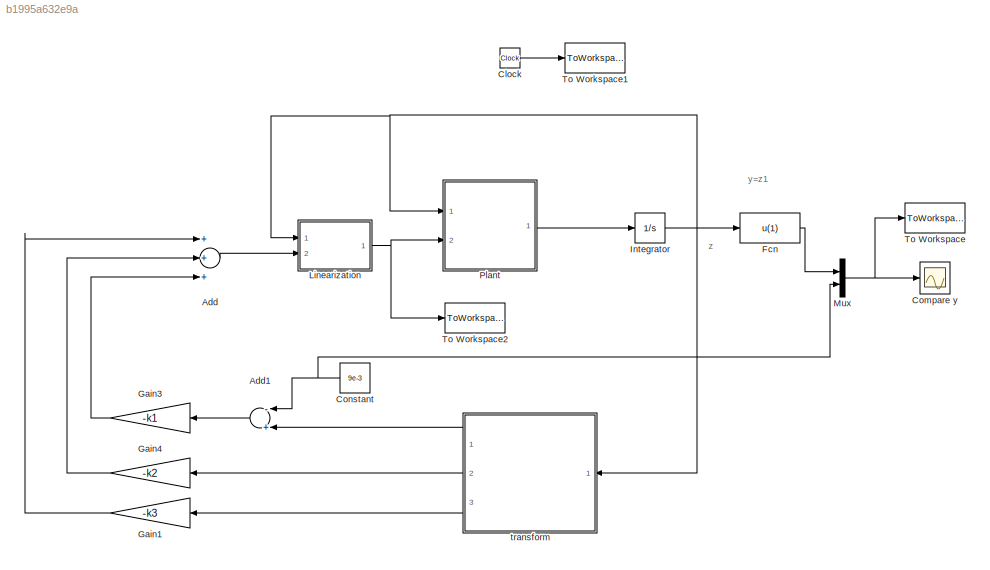
MODEL slx_b1995a632e9a
KIND model
CONFIG AbsTol = auto
CONFIG EnableMultiTasking = off
CONFIG FixedStep = auto
CONFIG MaxStep = auto
CONFIG MinStep = auto
CONFIG RelTol = 1e-3
CONFIG SampleTimeConstraint = Unconstrained
CONFIG Solver = VariableStepAuto
CONFIG SolverName = VariableStepAuto
CONFIG StartTime = 0.0
CONFIG StopTime = 20
BLOCK [Sum] Add
  InputSameDT = off
  Inputs = +++
  OutDataTypeStr = Inherit: Inherit via internal rule
  Ports = [3, 1]
  SaturateOnIntegerOverflow = off
BLOCK [Sum] Add1
  InputSameDT = off
  Inputs = -+
  OutDataTypeStr = Inherit: Inherit via internal rule
  Ports = [2, 1]
  SaturateOnIntegerOverflow = off
BLOCK [Clock] Clock
BLOCK [Scope] Compare y
  Floating = off
  NumInputPorts = 1
  Ports = [1]
  ScopeSpecificationString = Simulink.scopes.TimeScopeBlockCfg('CurrentConfiguration', extmgr.ConfigurationSet(extmgr.Configuration('Core','General UI',true),extmgr.Configuration('Core','Source UI',true),extmgr.Configuration('Sources','WiredSimulink',true,'DataLoggingVariableName','ScopeData1'),extmgr.Configuration('Visuals','Time Domain',true,'SerializedDisplays',{struct('MinYLimReal','-0.00238','MaxYLimReal','0.11138','YLab...<+1473ch>
BLOCK [Constant] Constant
  Value = 9e-3
BLOCK [Fcn] Fcn
  Expr = u(1)
BLOCK [Gain] Gain1
  Gain = -k3
  OutDataTypeStr = Inherit: Inherit via internal rule
  ParamDataTypeStr = Inherit: Inherit via internal rule
  SaturateOnIntegerOverflow = off
BLOCK [Gain] Gain3
  Gain = -k1
  OutDataTypeStr = Inherit: Inherit via internal rule
  ParamDataTypeStr = Inherit: Inherit via internal rule
  SaturateOnIntegerOverflow = off
BLOCK [Gain] Gain4
  Gain = -k2
  OutDataTypeStr = Inherit: Inherit via internal rule
  ParamDataTypeStr = Inherit: Inherit via internal rule
  SaturateOnIntegerOverflow = off
BLOCK [Integrator] Integrator
  InitialCondition = z0
  Ports = [1, 1]
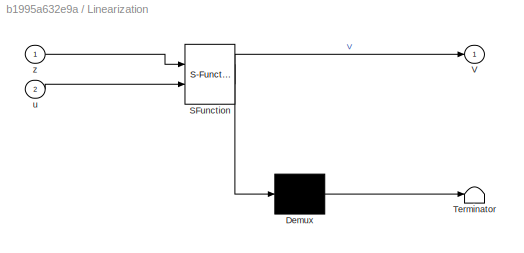
BLOCK [SubSystem] Linearization
  ErrorFcn = Stateflow.Translate.translate
  PermitHierarchicalResolution = ExplicitOnly
  Ports = [2, 1]
  RequestExecContextInheritance = off
  SFBlockType = MATLAB Function
  TreatAsAtomicUnit = on
BLOCK [Demux] Linearization/ Demux 
  Outputs = 1
  Ports = [1, 1]
BLOCK [S-Function] Linearization/ SFunction 
  EnableBusSupport = on
  FunctionName = sf_sfun
  PortCounts = [2 2]
  Ports = [2, 2]
  SFcnIsStateOwnerBlock = off
  SFunctionDeploymentMode = off
  Tag = Stateflow S-Function 1
BLOCK [Terminator] Linearization/ Terminator 
BLOCK [Outport] Linearization/V
  IconDisplay = Port number
  VectorParamsAs1DForOutWhenUnconnected = off
BLOCK [Inport] Linearization/u
  IconDisplay = Port number
  Port = 2
BLOCK [Inport] Linearization/z
  IconDisplay = Port number
BLOCK [Mux] Mux
  DisplayOption = bar
  Inputs = 2
  Ports = [2, 1]
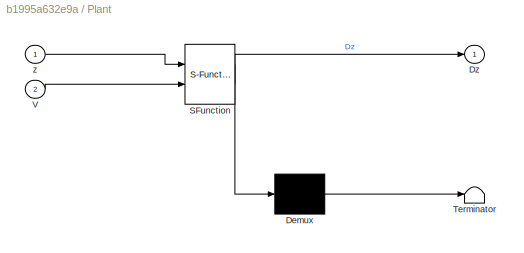
BLOCK [SubSystem] Plant
  ErrorFcn = Stateflow.Translate.translate
  PermitHierarchicalResolution = ExplicitOnly
  Ports = [2, 1]
  RequestExecContextInheritance = off
  SFBlockType = MATLAB Function
  TreatAsAtomicUnit = on
BLOCK [Demux] Plant/ Demux 
  Outputs = 1
  Ports = [1, 1]
BLOCK [S-Function] Plant/ SFunction 
  EnableBusSupport = on
  FunctionName = sf_sfun
  PortCounts = [2 2]
  Ports = [2, 2]
  SFcnIsStateOwnerBlock = off
  SFunctionDeploymentMode = off
  Tag = Stateflow S-Function 2
BLOCK [Terminator] Plant/ Terminator 
BLOCK [Outport] Plant/Dz
  IconDisplay = Port number
  VectorParamsAs1DForOutWhenUnconnected = off
BLOCK [Inport] Plant/V
  IconDisplay = Port number
  Port = 2
BLOCK [Inport] Plant/z
  IconDisplay = Port number
BLOCK [ToWorkspace] To Workspace
  FixptAsFi = on
  MaxDataPoints = inf
  Ports = [1]
  SampleTime = -1
  VariableName = Yout
BLOCK [ToWorkspace] To Workspace1
  FixptAsFi = on
  MaxDataPoints = inf
  Ports = [1]
  SampleTime = -1
  VariableName = Tout
BLOCK [ToWorkspace] To Workspace2
  FixptAsFi = on
  MaxDataPoints = inf
  Ports = [1]
  SampleTime = -1
  VariableName = Vout
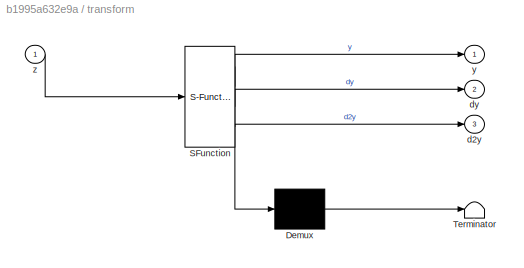
BLOCK [SubSystem] transform
  ErrorFcn = Stateflow.Translate.translate
  PermitHierarchicalResolution = ExplicitOnly
  Ports = [1, 3]
  RequestExecContextInheritance = off
  SFBlockType = MATLAB Function
  TreatAsAtomicUnit = on
BLOCK [Demux] transform/ Demux 
  Outputs = 1
  Ports = [1, 1]
BLOCK [S-Function] transform/ SFunction 
  EnableBusSupport = on
  FunctionName = sf_sfun
  PortCounts = [1 4]
  Ports = [1, 4]
  SFcnIsStateOwnerBlock = off
  SFunctionDeploymentMode = off
  Tag = Stateflow S-Function 3
BLOCK [Terminator] transform/ Terminator 
BLOCK [Outport] transform/d2y
  IconDisplay = Port number
  Port = 3
  VectorParamsAs1DForOutWhenUnconnected = off
BLOCK [Outport] transform/dy
  IconDisplay = Port number
  Port = 2
  VectorParamsAs1DForOutWhenUnconnected = off
BLOCK [Outport] transform/y
  IconDisplay = Port number
  VectorParamsAs1DForOutWhenUnconnected = off
BLOCK [Inport] transform/z
  IconDisplay = Port number
ANNOTATION (root): y=z1
ANNOTATION (root): z
LINE Add1:1 -> Gain3:1
LINE Add:1 -> Linearization:2
LINE Clock:1 -> To Workspace1:1
NET Constant:1 -> Add1:1, Mux:2
LINE Fcn:1 -> Mux:1
LINE Gain1:1 -> Add:1
LINE Gain3:1 -> Add:3
LINE Gain4:1 -> Add:2
NET Integrator:1 -> Fcn:1, Linearization:1, Plant:1, transform:1
NET Linearization:1 -> Plant:2, To Workspace2:1
NET Mux:1 -> Compare y:1, To Workspace:1
LINE Plant:1 -> Integrator:1
LINE transform:1 -> Add1:2
LINE transform:2 -> Gain4:1
LINE transform:3 -> Gain1:1
note: NET lines group one-source signal fan-out (src -> all destinations, sorted); 1:1 wires keep LINE
CHART Linearization states=1 transitions=1
  STATE_LABEL 'eML_blk_kernel()'
  STATE_LABEL 'SCRIPT:\nfunction V = fcn(z,u)\n\nz1 = z(1);\nz2 = z(2);\nz3 = z(3);\n\n% Paramerters\nL = 0.4125;\nR1 = 10;\nRs = 1;\nG = 3.2654e-5;\nm = 0.068;\ng = 9.8;\n\nLf3hz = (2*G*z2*z3^2)/(m*z1^3) + (2*G*z3^2*(R1 + Rs))/(L*m*z1^2);\nLgLf2hz = -(2*G*z3)/(L*m*z1^2);\n\nV = (u  - Lf3hz) / LgLf2hz;'
CHART Plant states=1 transitions=1
  STATE_LABEL 'eML_blk_kernel()'
  STATE_LABEL 'SCRIPT:\nfunction Dz = fcn(z,V)\n\n% Paramerters\nL = 0.4125;\nR1 = 10;\nRs = 1;\nG = 3.2654e-5;\nm = 0.068;\ng = 9.8;\n\nz1 = z(1);\nz2 = z(2);\nz3 = z(3);\n\n\nDz = [z2; g-G*z3^2/(m*z1^2); V/L-(R1+Rs)*z3/L ];'
CHART transform states=1 transitions=1
  STATE_LABEL 'eML_blk_kernel()'
  STATE_LABEL 'SCRIPT:\nfunction [y,dy,d2y] = fcn(z)\n\nz1 = z(1);\nz2 = z(2);\nz3 = z(3);\n\n\n% Paramerters\nL = 0.4125;\nR1 = 10;\nRs = 1;\nG = 3.2654e-5;\nm = 0.068;\ng = 9.8;\n\ny = z1;\ndy = z2;\nd2y = g-G*z3^2/(m*z1^2);\n\n\n'
